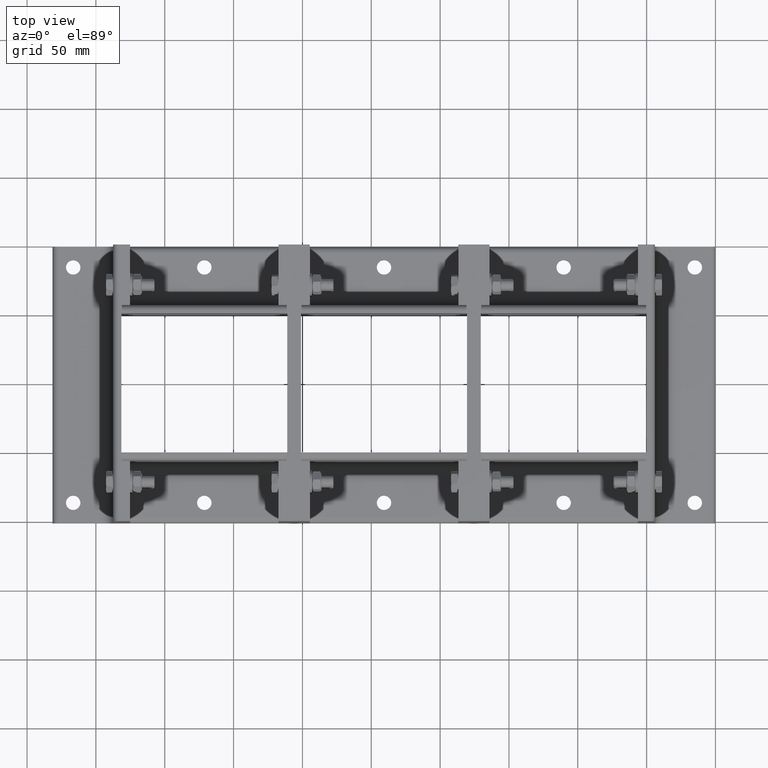
[diagram: clean part render]
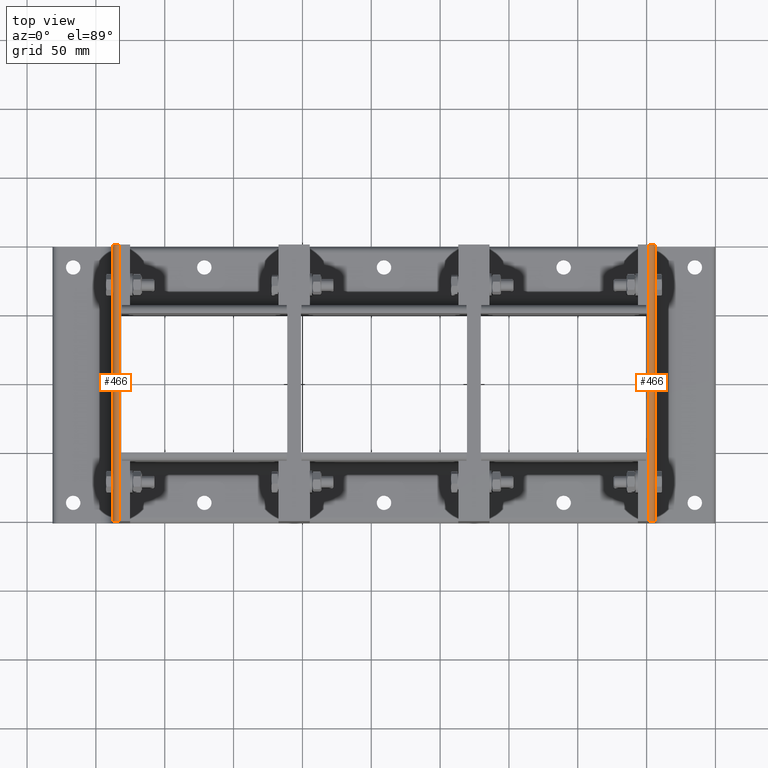
[diagram: same view with one multi-face feature highlighted, each face labeled with its STEP entity id]
A machine part, top view. The highlighted faces form ONE feature: a constant-radius fillet chain: 2 tangent blend faces with common blend radius 4.5 mm. The faces share edges in the B-rep.
Their STEP definitions:
[1] entity #466 (Cylinder):
#392=CARTESIAN_POINT('',(6.000000000000022,0.0,95.5));
#393=VERTEX_POINT('',#392);
#400=CARTESIAN_POINT('',(1.500000000000022,0.0,100.0));
#401=VERTEX_POINT('',#400);
#402=CARTESIAN_POINT('',(1.500000000000022,0.0,95.5));
#403=DIRECTION('',(0.0,1.0,0.0));
#404=DIRECTION('',(0.707106781186548,0.0,0.707106781186547));
#405=AXIS2_PLACEMENT_3D('',#402,#403,#404);
#406=CIRCLE('',#405,4.5);
#407=EDGE_CURVE('',#401,#393,#406,.T.);
#435=CARTESIAN_POINT('',(1.500000000000022,0.0,95.5));
#436=DIRECTION('',(0.0,1.0,0.0));
#437=DIRECTION('',(0.707106781186548,0.0,0.707106781186547));
#438=AXIS2_PLACEMENT_3D('',#435,#436,#437);
#439=CYLINDRICAL_SURFACE('',#438,4.5);
#440=CARTESIAN_POINT('',(6.000000000000022,201.0,95.5));
#441=VERTEX_POINT('',#440);
#442=CARTESIAN_POINT('',(1.500000000000022,201.0,100.0));
#443=VERTEX_POINT('',#442);
#444=CARTESIAN_POINT('',(1.500000000000022,201.0,95.5));
#445=DIRECTION('',(0.0,-1.0,0.0));
#446=DIRECTION('',(0.707106781186548,0.0,0.707106781186547));
#447=AXIS2_PLACEMENT_3D('',#444,#445,#446);
#448=CIRCLE('',#447,4.5);
#449=EDGE_CURVE('',#441,#443,#448,.T.);
#450=ORIENTED_EDGE('',*,*,#449,.T.);
#451=CARTESIAN_POINT('',(1.500000000000022,201.0,100.0));
#452=DIRECTION('',(0.0,-1.0,0.0));
#453=VECTOR('',#452,201.0);
#454=LINE('',#451,#453);
#455=EDGE_CURVE('',#443,#401,#454,.T.);
#456=ORIENTED_EDGE('',*,*,#455,.T.);
#457=ORIENTED_EDGE('',*,*,#407,.T.);
#458=CARTESIAN_POINT('',(6.000000000000022,0.0,95.5));
#459=DIRECTION('',(0.0,1.0,0.0));
#460=VECTOR('',#459,201.0);
#461=LINE('',#458,#460);
#462=EDGE_CURVE('',#393,#441,#461,.T.);
#463=ORIENTED_EDGE('',*,*,#462,.T.);
#464=EDGE_LOOP('',(#450,#456,#457,#463));
#465=FACE_OUTER_BOUND('',#464,.T.);
#466=ADVANCED_FACE('',(#465),#439,.T.);
[2] entity #466 (Cylinder):
#392=CARTESIAN_POINT('',(6.000000000000022,0.0,95.5));
#393=VERTEX_POINT('',#392);
#400=CARTESIAN_POINT('',(1.500000000000022,0.0,100.0));
#401=VERTEX_POINT('',#400);
#402=CARTESIAN_POINT('',(1.500000000000022,0.0,95.5));
#403=DIRECTION('',(0.0,1.0,0.0));
#404=DIRECTION('',(0.707106781186548,0.0,0.707106781186547));
#405=AXIS2_PLACEMENT_3D('',#402,#403,#404);
#406=CIRCLE('',#405,4.5);
#407=EDGE_CURVE('',#401,#393,#406,.T.);
#435=CARTESIAN_POINT('',(1.500000000000022,0.0,95.5));
#436=DIRECTION('',(0.0,1.0,0.0));
#437=DIRECTION('',(0.707106781186548,0.0,0.707106781186547));
#438=AXIS2_PLACEMENT_3D('',#435,#436,#437);
#439=CYLINDRICAL_SURFACE('',#438,4.5);
#440=CARTESIAN_POINT('',(6.000000000000022,201.0,95.5));
#441=VERTEX_POINT('',#440);
#442=CARTESIAN_POINT('',(1.500000000000022,201.0,100.0));
#443=VERTEX_POINT('',#442);
#444=CARTESIAN_POINT('',(1.500000000000022,201.0,95.5));
#445=DIRECTION('',(0.0,-1.0,0.0));
#446=DIRECTION('',(0.707106781186548,0.0,0.707106781186547));
#447=AXIS2_PLACEMENT_3D('',#444,#445,#446);
#448=CIRCLE('',#447,4.5);
#449=EDGE_CURVE('',#441,#443,#448,.T.);
#450=ORIENTED_EDGE('',*,*,#449,.T.);
#451=CARTESIAN_POINT('',(1.500000000000022,201.0,100.0));
#452=DIRECTION('',(0.0,-1.0,0.0));
#453=VECTOR('',#452,201.0);
#454=LINE('',#451,#453);
#455=EDGE_CURVE('',#443,#401,#454,.T.);
#456=ORIENTED_EDGE('',*,*,#455,.T.);
#457=ORIENTED_EDGE('',*,*,#407,.T.);
#458=CARTESIAN_POINT('',(6.000000000000022,0.0,95.5));
#459=DIRECTION('',(0.0,1.0,0.0));
#460=VECTOR('',#459,201.0);
#461=LINE('',#458,#460);
#462=EDGE_CURVE('',#393,#441,#461,.T.);
#463=ORIENTED_EDGE('',*,*,#462,.T.);
#464=EDGE_LOOP('',(#450,#456,#457,#463));
#465=FACE_OUTER_BOUND('',#464,.T.);
#466=ADVANCED_FACE('',(#465),#439,.T.);